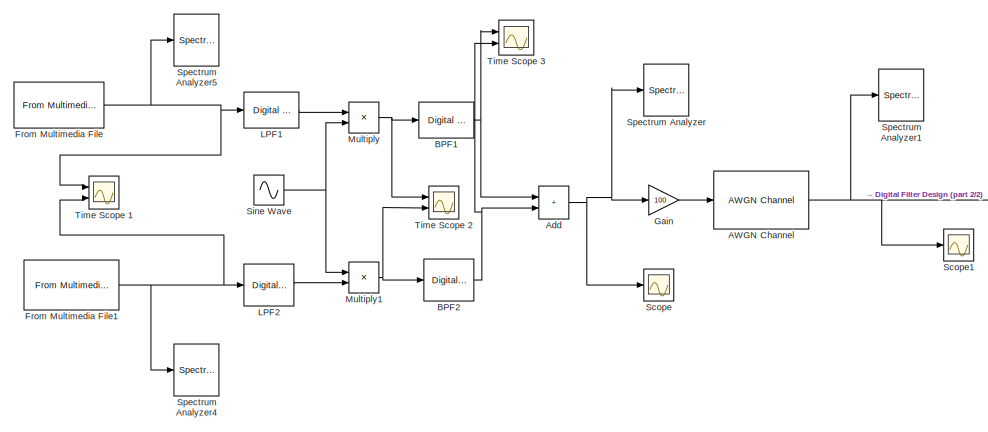
[diagram: root canvas - part 1/2, left side, full height]
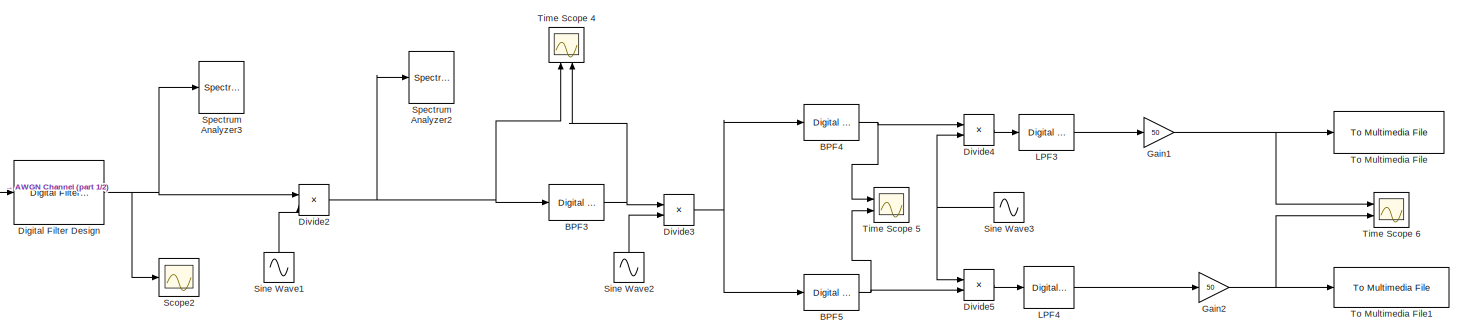
[diagram: root canvas - part 2/2, middle right region]
MODEL slx_5c5e018519fd
KIND model
CONFIG AbsTol = auto
CONFIG EnableMultiTasking = off
CONFIG FixedStep = auto
CONFIG InitFcn = clear all\nclose all\nclc\nfs=44100;\nts=1/fs;\n
CONFIG MaxStep = auto
CONFIG MinStep = auto
CONFIG RelTol = 1e-3
CONFIG SampleTimeConstraint = Unconstrained
CONFIG SolverName = VariableStepAuto
CONFIG StartTime = 0.0
CONFIG StopTime = 3
BLOCK [Reference] AWGN Channel  REF=commchan3/AWGN
Channel
  Ports = [1, 1]
  SourceBlock = commchan3/AWGN\nChannel
  SourceProductBaseCode = CM
  SourceType = AWGN Channel
  UserDataPersistent = on
BLOCK [Sum] Add
  IconShape = rectangular
  Ports = [2, 1]
  SampleTime = ts
BLOCK [Reference] BPF1  REF=dsparch4/Digital
Filter Design
  Ports = [1, 1]
  SourceBlock = dsparch4/Digital\nFilter Design
  SourceProductBaseCode = DS
  SourceType = Digital Filter Design
  UserDataPersistent = on
BLOCK [Reference] BPF2  REF=dsparch4/Digital
Filter Design
  Ports = [1, 1]
  SourceBlock = dsparch4/Digital\nFilter Design
  SourceProductBaseCode = DS
  SourceType = Digital Filter Design
  UserDataPersistent = on
BLOCK [Reference] BPF3  REF=dsparch4/Digital
Filter Design
  Ports = [1, 1]
  SourceBlock = dsparch4/Digital\nFilter Design
  SourceProductBaseCode = DS
  SourceType = Digital Filter Design
  UserDataPersistent = on
BLOCK [Reference] BPF4  REF=dsparch4/Digital
Filter Design
  Ports = [1, 1]
  SourceBlock = dsparch4/Digital\nFilter Design
  SourceProductBaseCode = DS
  SourceType = Digital Filter Design
  UserDataPersistent = on
BLOCK [Reference] BPF5  REF=dsparch4/Digital
Filter Design
  Ports = [1, 1]
  SourceBlock = dsparch4/Digital\nFilter Design
  SourceProductBaseCode = DS
  SourceType = Digital Filter Design
  UserDataPersistent = on
BLOCK [Reference] Digital Filter Design  REF=dsparch4/Digital
Filter Design
  Ports = [1, 1]
  SourceBlock = dsparch4/Digital\nFilter Design
  SourceProductBaseCode = DS
  SourceType = Digital Filter Design
  UserDataPersistent = on
BLOCK [Product] Divide2
  Inputs = **
  Ports = [2, 1]
  SampleTime = ts
BLOCK [Product] Divide3
  Inputs = **
  Ports = [2, 1]
  SampleTime = ts
BLOCK [Product] Divide4
  Inputs = **
  Ports = [2, 1]
  SampleTime = ts
BLOCK [Product] Divide5
  Inputs = **
  Ports = [2, 1]
  SampleTime = ts
BLOCK [Reference] From Multimedia File  REF=dspvision/From Multimedia File
  Ports = [0, 1]
  SourceBlock = dspvision/From Multimedia File
  SourceProductBaseCode = DS,HW,VP
  SourceType = From Multimedia File
BLOCK [Reference] From Multimedia File1  REF=dspvision/From Multimedia File
  Ports = [0, 1]
  SourceBlock = dspvision/From Multimedia File
  SourceProductBaseCode = DS,HW,VP
  SourceType = From Multimedia File
BLOCK [Gain] Gain
  Gain = 100
BLOCK [Gain] Gain1
  Gain = 50
BLOCK [Gain] Gain2
  Gain = 50
BLOCK [Reference] LPF1  REF=dsparch4/Digital
Filter Design
  Ports = [1, 1]
  SourceBlock = dsparch4/Digital\nFilter Design
  SourceProductBaseCode = DS
  SourceType = Digital Filter Design
  UserDataPersistent = on
BLOCK [Reference] LPF2  REF=dsparch4/Digital
Filter Design
  Ports = [1, 1]
  SourceBlock = dsparch4/Digital\nFilter Design
  SourceProductBaseCode = DS
  SourceType = Digital Filter Design
  UserDataPersistent = on
BLOCK [Reference] LPF3  REF=dsparch4/Digital
Filter Design
  Ports = [1, 1]
  SourceBlock = dsparch4/Digital\nFilter Design
  SourceProductBaseCode = DS
  SourceType = Digital Filter Design
  UserDataPersistent = on
BLOCK [Reference] LPF4  REF=dsparch4/Digital
Filter Design
  Ports = [1, 1]
  SourceBlock = dsparch4/Digital\nFilter Design
  SourceProductBaseCode = DS
  SourceType = Digital Filter Design
  UserDataPersistent = on
BLOCK [Product] Multiply
  Inputs = **
  Ports = [2, 1]
  SampleTime = ts
BLOCK [Product] Multiply1
  Inputs = **
  Ports = [2, 1]
  SampleTime = ts
BLOCK [Scope] Scope
  Floating = off
  NumInputPorts = 1
  Ports = [1]
  ScopeSpecificationString = Simulink.scopes.TimeScopeBlockCfg('CurrentConfiguration', extmgr.ConfigurationSet(extmgr.Configuration('Core','General UI',true),extmgr.Configuration('Core','Source UI',true),extmgr.Configuration('Sources','WiredSimulink',true,'DataLoggingVariableName','ScopeData1'),extmgr.Configuration('Visuals','Time Domain',true,'SerializedDisplays',{struct('MinYLimReal','-0.29963','MaxYLimReal','0.28198','YLab...<+1445ch>
BLOCK [Scope] Scope1
  Floating = off
  NumInputPorts = 1
  Ports = [1]
  ScopeSpecificationString = Simulink.scopes.TimeScopeBlockCfg('CurrentConfiguration', extmgr.ConfigurationSet(extmgr.Configuration('Core','General UI',true),extmgr.Configuration('Core','Source UI',true),extmgr.Configuration('Sources','WiredSimulink',true,'DataLoggingVariableName','ScopeData2'),extmgr.Configuration('Visuals','Time Domain',true,'SerializedDisplays',{struct('MinYLimReal','-273.79813','MaxYLimReal','289.25706','...<+1481ch>
BLOCK [Scope] Scope2
  Floating = off
  NumInputPorts = 1
  Ports = [1]
  ScopeSpecificationString = Simulink.scopes.TimeScopeBlockCfg('CurrentConfiguration', extmgr.ConfigurationSet(extmgr.Configuration('Core','General UI',true),extmgr.Configuration('Core','Source UI',true),extmgr.Configuration('Sources','WiredSimulink',true,'DataLoggingVariableName','ScopeData3'),extmgr.Configuration('Visuals','Time Domain',true,'SerializedDisplays',{struct('MinYLimReal','-1.3709','MaxYLimReal','1.33541','YLabe...<+1433ch>
BLOCK [Sin] Sine Wave
  Frequency = 2*pi*6000
  Ports = [0, 1]
  SampleTime = ts
BLOCK [Sin] Sine Wave1
  Frequency = 2*pi*12000
  NameLocation = right
  Ports = [0, 1]
  SampleTime = ts
BLOCK [Sin] Sine Wave2
  Frequency = 2*pi*12000
  NameLocation = right
  Ports = [0, 1]
  SampleTime = ts
BLOCK [Sin] Sine Wave3
  Frequency = 2*pi*6000
  NameLocation = top
  Ports = [0, 1]
  SampleTime = ts
BLOCK [SpectrumAnalyzer] Spectrum Analyzer
  Ports = [1]
  ScopeSpecificationString = spbscopes.SpectrumAnalyzerBlockCfg('CurrentConfiguration', extmgr.ConfigurationSet(extmgr.Configuration('Core','General UI',true),extmgr.Configuration('Core','Source UI',true),extmgr.Configuration('Sources','WiredSimulink',true),extmgr.Configuration('Visuals','Spectrum',true,'AxesProperties',struct('Color',{[0 0 0],[0 0 0]},'XColor',{[0.686274509803922 0.686274509803922 0.686274509803922],[0.68627...<+2007ch>
BLOCK [SpectrumAnalyzer] Spectrum Analyzer1
  Ports = [1]
  ScopeSpecificationString = spbscopes.SpectrumAnalyzerBlockCfg('CurrentConfiguration', extmgr.ConfigurationSet(extmgr.Configuration('Core','General UI',true),extmgr.Configuration('Core','Source UI',true),extmgr.Configuration('Sources','WiredSimulink',true),extmgr.Configuration('Visuals','Spectrum',true,'AxesProperties',struct('Color',{[0 0 0],[0 0 0]},'XColor',{[0.686274509803922 0.686274509803922 0.686274509803922],[0.68627...<+2012ch>
BLOCK [SpectrumAnalyzer] Spectrum Analyzer2
  Ports = [1]
  ScopeSpecificationString = spbscopes.SpectrumAnalyzerBlockCfg('CurrentConfiguration', extmgr.ConfigurationSet(extmgr.Configuration('Core','General UI',true),extmgr.Configuration('Core','Source UI',true),extmgr.Configuration('Sources','WiredSimulink',true),extmgr.Configuration('Visuals','Spectrum',true,'AxesProperties',struct('Color',{[0 0 0],[0 0 0]},'XColor',{[0.686274509803922 0.686274509803922 0.686274509803922],[0.68627...<+2010ch>
BLOCK [SpectrumAnalyzer] Spectrum Analyzer3
  Ports = [1]
  ScopeSpecificationString = spbscopes.SpectrumAnalyzerBlockCfg('CurrentConfiguration', extmgr.ConfigurationSet(extmgr.Configuration('Core','General UI',true),extmgr.Configuration('Core','Source UI',true),extmgr.Configuration('Sources','WiredSimulink',true),extmgr.Configuration('Visuals','Spectrum',true,'AxesProperties',struct('Color',{[0 0 0],[0 0 0]},'XColor',{[0.686274509803922 0.686274509803922 0.686274509803922],[0.68627...<+2012ch>
BLOCK [SpectrumAnalyzer] Spectrum Analyzer4
  Ports = [1]
  ScopeSpecificationString = spbscopes.SpectrumAnalyzerBlockCfg('CurrentConfiguration', extmgr.ConfigurationSet(extmgr.Configuration('Core','General UI',true),extmgr.Configuration('Core','Source UI',true),extmgr.Configuration('Sources','WiredSimulink',true),extmgr.Configuration('Visuals','Spectrum',true,'AxesProperties',struct('Color',{[0 0 0],[0 0 0]},'XColor',{[0.686274509803922 0.686274509803922 0.686274509803922],[0.68627...<+1945ch>
BLOCK [SpectrumAnalyzer] Spectrum Analyzer5
  Ports = [1]
  ScopeSpecificationString = spbscopes.SpectrumAnalyzerBlockCfg('CurrentConfiguration', extmgr.ConfigurationSet(extmgr.Configuration('Core','General UI',true),extmgr.Configuration('Core','Source UI',true),extmgr.Configuration('Sources','WiredSimulink',true),extmgr.Configuration('Visuals','Spectrum',true,'AxesProperties',struct('Color',{[0 0 0],[0 0 0]},'XColor',{[0.686274509803922 0.686274509803922 0.686274509803922],[0.68627...<+2007ch>
BLOCK [Scope] Time Scope 1
  DefaultConfigurationName = spbscopes.TimeScopeBlockCfg
  Floating = off
  NumInputPorts = 2
  Ports = [2]
  ScopeSpecificationString = spbscopes.TimeScopeBlockCfg('CurrentConfiguration', extmgr.ConfigurationSet(extmgr.Configuration('Core','General UI',true),extmgr.Configuration('Core','Source UI',true),extmgr.Configuration('Sources','WiredSimulink',true),extmgr.Configuration('Visuals','Time Domain',true,'DisplayLayoutDimensions',[2 1],'DisplayPropertyDefaults',struct('YLabelReal','Amplitude','AxesColor',[0 0 0],'AxesTickColor',[0...<+2010ch>
  UserDataPersistent = on
BLOCK [Scope] Time Scope 2
  DefaultConfigurationName = spbscopes.TimeScopeBlockCfg
  Floating = off
  NumInputPorts = 2
  Ports = [2]
  ScopeSpecificationString = spbscopes.TimeScopeBlockCfg('CurrentConfiguration', extmgr.ConfigurationSet(extmgr.Configuration('Core','General UI',true),extmgr.Configuration('Core','Source UI',true),extmgr.Configuration('Sources','WiredSimulink',true,'DataLoggingVariableName','ScopeData1'),extmgr.Configuration('Visuals','Time Domain',true,'DisplayLayoutDimensions',[2 1],'DisplayPropertyDefaults',struct('YLabelReal','Amplitude'...<+2045ch>
  UserDataPersistent = on
BLOCK [Scope] Time Scope 3
  DefaultConfigurationName = spbscopes.TimeScopeBlockCfg
  Floating = off
  NumInputPorts = 2
  Ports = [2]
  ScopeSpecificationString = spbscopes.TimeScopeBlockCfg('CurrentConfiguration', extmgr.ConfigurationSet(extmgr.Configuration('Core','General UI',true),extmgr.Configuration('Core','Source UI',true),extmgr.Configuration('Sources','WiredSimulink',true,'DataLoggingVariableName','ScopeData2'),extmgr.Configuration('Visuals','Time Domain',true,'DisplayLayoutDimensions',[2 1],'DisplayPropertyDefaults',struct('YLabelReal','Amplitude'...<+2029ch>
  UserDataPersistent = on
BLOCK [Scope] Time Scope 4
  DefaultConfigurationName = spbscopes.TimeScopeBlockCfg
  Floating = off
  NameLocation = right
  NumInputPorts = 2
  Ports = [2]
  ScopeSpecificationString = spbscopes.TimeScopeBlockCfg('CurrentConfiguration', extmgr.ConfigurationSet(extmgr.Configuration('Core','General UI',true),extmgr.Configuration('Core','Source UI',true),extmgr.Configuration('Sources','WiredSimulink',true,'DataLoggingVariableName','ScopeData3'),extmgr.Configuration('Visuals','Time Domain',true,'DisplayLayoutDimensions',[2 1],'DisplayPropertyDefaults',struct('YLabelReal','Amplitude'...<+2046ch>
  UserDataPersistent = on
BLOCK [Scope] Time Scope 5
  DefaultConfigurationName = spbscopes.TimeScopeBlockCfg
  Floating = off
  NumInputPorts = 2
  Ports = [2]
  ScopeSpecificationString = spbscopes.TimeScopeBlockCfg('CurrentConfiguration', extmgr.ConfigurationSet(extmgr.Configuration('Core','General UI',true),extmgr.Configuration('Core','Source UI',true),extmgr.Configuration('Sources','WiredSimulink',true,'DataLoggingVariableName','ScopeData4'),extmgr.Configuration('Visuals','Time Domain',true,'DisplayLayoutDimensions',[2 1],'DisplayPropertyDefaults',struct('YLabelReal','Amplitude'...<+2040ch>
  UserDataPersistent = on
BLOCK [Scope] Time Scope 6
  DefaultConfigurationName = spbscopes.TimeScopeBlockCfg
  Floating = off
  NumInputPorts = 2
  Ports = [2]
  ScopeSpecificationString = spbscopes.TimeScopeBlockCfg('CurrentConfiguration', extmgr.ConfigurationSet(extmgr.Configuration('Core','General UI',true),extmgr.Configuration('Core','Source UI',true),extmgr.Configuration('Sources','WiredSimulink',true,'DataLoggingVariableName','ScopeData5'),extmgr.Configuration('Visuals','Time Domain',true,'DisplayLayoutDimensions',[2 1],'DisplayPropertyDefaults',struct('YLabelReal','Amplitude'...<+2051ch>
  UserDataPersistent = on
BLOCK [Reference] To Multimedia File  REF=dspvision/To Multimedia File
  Ports = [1]
  SourceBlock = dspvision/To Multimedia File
  SourceProductBaseCode = DS,HW,VP
  SourceType = To Multimedia File
BLOCK [Reference] To Multimedia File1  REF=dspvision/To Multimedia File
  Ports = [1]
  SourceBlock = dspvision/To Multimedia File
  SourceProductBaseCode = DS,HW,VP
  SourceType = To Multimedia File
NET AWGN Channel:1 -> Digital Filter Design:1, Scope1:1, Spectrum Analyzer1:1
NET Add:1 -> Gain:1, Scope:1, Spectrum Analyzer:1
NET BPF1:1 -> Add:1, Time Scope 3:1
NET BPF2:1 -> Add:2, Time Scope 3:2
NET BPF3:1 -> Divide3:1, Time Scope 4:2
NET BPF4:1 -> Divide4:1, Time Scope 5:1
NET BPF5:1 -> Divide5:2, Time Scope 5:2
NET Digital Filter Design:1 -> Divide2:1, Scope2:1, Spectrum Analyzer3:1
NET Divide2:1 -> BPF3:1, Spectrum Analyzer2:1, Time Scope 4:1
NET Divide3:1 -> BPF4:1, BPF5:1
LINE Divide4:1 -> LPF3:1
LINE Divide5:1 -> LPF4:1
NET From Multimedia File1:1 -> LPF2:1, Spectrum Analyzer4:1, Time Scope 1:2
NET From Multimedia File:1 -> LPF1:1, Spectrum Analyzer5:1, Time Scope 1:1
NET Gain1:1 -> Time Scope 6:1, To Multimedia File:1
NET Gain2:1 -> Time Scope 6:2, To Multimedia File1:1
LINE Gain:1 -> AWGN Channel:1
LINE LPF1:1 -> Multiply:1
LINE LPF2:1 -> Multiply1:2
LINE LPF3:1 -> Gain1:1
LINE LPF4:1 -> Gain2:1
NET Multiply1:1 -> BPF2:1, Time Scope 2:2
NET Multiply:1 -> BPF1:1, Time Scope 2:1
LINE Sine Wave1:1 -> Divide2:2
LINE Sine Wave2:1 -> Divide3:2
NET Sine Wave3:1 -> Divide4:2, Divide5:1
NET Sine Wave:1 -> Multiply1:1, Multiply:2
note: NET lines group one-source signal fan-out (src -> all destinations, sorted); 1:1 wires keep LINE
